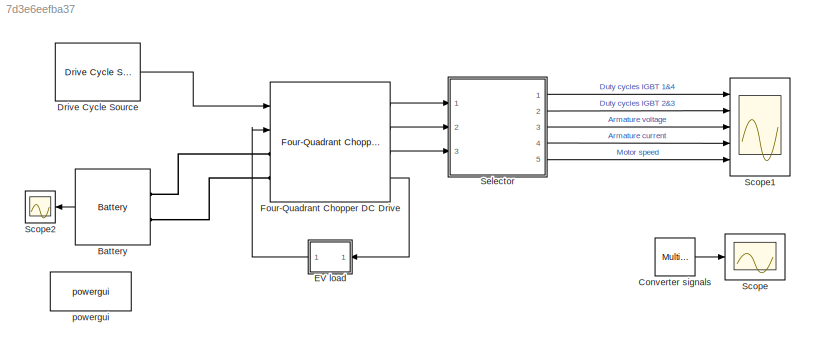
MODEL slx_7d3e6eefba37
KIND model
CONFIG AbsTol = auto
CONFIG EnableMultiTasking = on
CONFIG FixedStep = auto
CONFIG MaxStep = auto
CONFIG MinStep = auto
CONFIG PreLoadFcn = assignin('base','Ts',1e-6)
CONFIG RelTol = 1e-3
CONFIG SampleTimeConstraint = Unconstrained
CONFIG Solver = FixedStepDiscrete
CONFIG SolverName = FixedStepDiscrete
CONFIG StartTime = 0.0
CONFIG StopTime = 20
BLOCK [Reference] Battery  REF=electricdrivelib/Extra Sources/Battery
  Ports = [0, 1, 0, 0, 0, 2]
  SourceBlock = electricdrivelib/Extra Sources/Battery
  SourceProductBaseCode = PS
  SourceType = Battery
BLOCK [Reference] Converter signals  REF=powerlib/Measurements/Multimeter
  Ports = [0, 1]
  SourceBlock = powerlib/Measurements/Multimeter
  SourceProductBaseCode = MT,PS
  SourceType = MultimeterPSB
BLOCK [Reference] Drive Cycle Source  REF=autolibshared/Drive Cycle Source
  AttributesFormatString = %<cycleVar> (%<tfinal>)
  Ports = [0, 1]
  SourceBlock = autolibshared/Drive Cycle Source
  SourceProductBaseCode = PW,MT,VE,VP
  SourceType = Drive Cycle Source
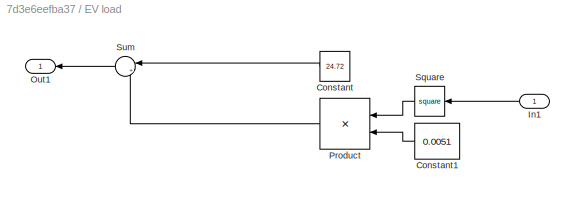
BLOCK [SubSystem] EV load
  Ports = [1, 1]
  RequestExecContextInheritance = off
BLOCK [Constant] EV load/Constant
  Value = 24.72
BLOCK [Constant] EV load/Constant1
  Value = 0.0051
BLOCK [Inport] EV load/In1
BLOCK [Outport] EV load/Out1
BLOCK [Product] EV load/Product
  Ports = [2, 1]
BLOCK [Math] EV load/Square
  Operator = square
  Ports = [1, 1]
BLOCK [Sum] EV load/Sum
  Inputs = |++
  Ports = [2, 1]
BLOCK [Reference] Four-Quadrant Chopper DC Drive  REF=electricdrivelib/DC drives/Four-Quadrant
Chopper DC Drive
  Ports = [2, 4, 0, 0, 0, 2]
  SourceBlock = electricdrivelib/DC drives/Four-Quadrant\nChopper DC Drive
  SourceProductBaseCode = PS
  SourceType = Four-Quadrant Chopper DC Drive
BLOCK [Scope] Scope
  Floating = off
  NumInputPorts = 1
  Ports = [1]
  ScopeSpecificationString = Simulink.scopes.TimeScopeBlockCfg('CurrentConfiguration', extmgr.ConfigurationSet(extmgr.Configuration('Core','General UI',true),extmgr.Configuration('Core','Source UI',true),extmgr.Configuration('Sources','WiredSimulink',true,'DataLoggingVariableName','ScopeData1','DataLoggingSaveFormat','StructureWithTime','DataLoggingDecimation','25','DataLoggingDecimateData',true),extmgr.Configuration('Visuals...<+1672ch>
BLOCK [Scope] Scope1
  Floating = off
  NumInputPorts = 5
  Ports = [5]
  ScopeSpecificationString = Simulink.scopes.TimeScopeBlockCfg('CurrentConfiguration', extmgr.ConfigurationSet(extmgr.Configuration('Core','General UI',true),extmgr.Configuration('Core','Source UI',true),extmgr.Configuration('Sources','WiredSimulink',true,'DataLoggingSaveFormat','StructureWithTime','DataLoggingDecimation','25','DataLoggingDecimateData',true),extmgr.Configuration('Visuals','Time Domain',true,'SerializedDisplay...<+5095ch>
BLOCK [Scope] Scope2
  Floating = off
  NumInputPorts = 1
  Ports = [1]
  ScopeSpecificationString = Simulink.scopes.TimeScopeBlockCfg('CurrentConfiguration', extmgr.ConfigurationSet(extmgr.Configuration('Core','General UI',true),extmgr.Configuration('Core','Source UI',true),extmgr.Configuration('Sources','WiredSimulink',true,'DataLoggingVariableName','ScopeData1'),extmgr.Configuration('Visuals','Time Domain',true,'SerializedDisplays',{struct('MinYLimReal','-272.56603','MaxYLimReal','493.58836','...<+1463ch>
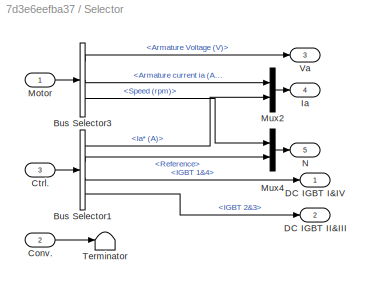
BLOCK [SubSystem] Selector
  Ports = [3, 5]
  RequestExecContextInheritance = off
BLOCK [BusSelector] Selector/Bus Selector1
  OutputSignals = Ia* (A),Reference,Duty Cycles.IGBT 1&4,Duty Cycles.IGBT 2&3
  Ports = [1, 4]
BLOCK [BusSelector] Selector/Bus Selector3
  OutputSignals = Armature Voltage (V),Armature current ia (A),Speed (rpm)
  Ports = [1, 3]
BLOCK [Inport] Selector/Conv.
  Port = 2
BLOCK [Inport] Selector/Ctrl.
  Port = 3
BLOCK [Outport] Selector/DC IGBT I&IV
  VectorParamsAs1DForOutWhenUnconnected = off
BLOCK [Outport] Selector/DC IGBT II&III
  Port = 2
  VectorParamsAs1DForOutWhenUnconnected = off
BLOCK [Outport] Selector/Ia
  Port = 4
  VectorParamsAs1DForOutWhenUnconnected = off
BLOCK [Inport] Selector/Motor
BLOCK [Mux] Selector/Mux2
  DisplayOption = bar
  Inputs = 2
  Ports = [2, 1]
BLOCK [Mux] Selector/Mux4
  DisplayOption = bar
  Inputs = 2
  Ports = [2, 1]
BLOCK [Outport] Selector/N
  Port = 5
  VectorParamsAs1DForOutWhenUnconnected = off
BLOCK [Terminator] Selector/Terminator
BLOCK [Outport] Selector/Va
  Port = 3
  VectorParamsAs1DForOutWhenUnconnected = off
BLOCK [Reference] powergui  REF=powerlib/powergui
  Ports = []
  Priority = 1
  SourceBlock = powerlib/powergui
  SourceProductBaseCode = PS
  SourceType = PSB option menu block
LINE Battery:1 -> Scope2:1
LINE Converter signals:1 -> Scope:1
LINE Drive Cycle Source:1 -> Four-Quadrant Chopper DC Drive:1
LINE EV load/Constant1:1 -> EV load/Product:2
LINE EV load/Constant:1 -> EV load/Sum:1
LINE EV load/In1:1 -> EV load/Square:1
LINE EV load/Product:1 -> EV load/Sum:2
LINE EV load/Square:1 -> EV load/Product:1
LINE EV load/Sum:1 -> EV load/Out1:1
LINE EV load:1 -> Four-Quadrant Chopper DC Drive:2
LINE Four-Quadrant Chopper DC Drive:1 -> Selector:1
LINE Four-Quadrant Chopper DC Drive:2 -> Selector:2
LINE Four-Quadrant Chopper DC Drive:3 -> Selector:3
LINE Four-Quadrant Chopper DC Drive:4 -> EV load:1
LINE Selector/Bus Selector1:1 -> Selector/Mux2:2
LINE Selector/Bus Selector1:2 -> Selector/Mux4:2
LINE Selector/Bus Selector1:3 -> Selector/DC IGBT I&IV:1
LINE Selector/Bus Selector1:4 -> Selector/DC IGBT II&III:1
LINE Selector/Bus Selector3:1 -> Selector/Va:1
LINE Selector/Bus Selector3:2 -> Selector/Mux2:1
LINE Selector/Bus Selector3:3 -> Selector/Mux4:1
LINE Selector/Conv.:1 -> Selector/Terminator:1
LINE Selector/Ctrl.:1 -> Selector/Bus Selector1:1
LINE Selector/Motor:1 -> Selector/Bus Selector3:1
LINE Selector/Mux2:1 -> Selector/Ia:1
LINE Selector/Mux4:1 -> Selector/N:1
LINE Selector:1 -> Scope1:1
LINE Selector:2 -> Scope1:2
LINE Selector:3 -> Scope1:3
LINE Selector:4 -> Scope1:4
LINE Selector:5 -> Scope1:5
PLINE Battery:LConn1 -- Four-Quadrant Chopper DC Drive:LConn1
PLINE Battery:LConn2 -- Four-Quadrant Chopper DC Drive:LConn2
